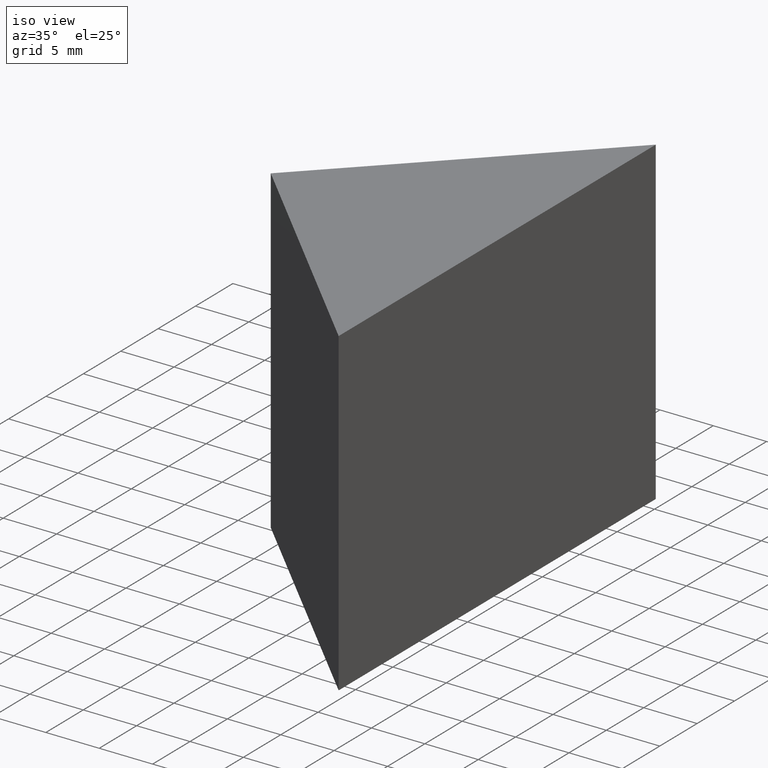
[diagram: clean part render]
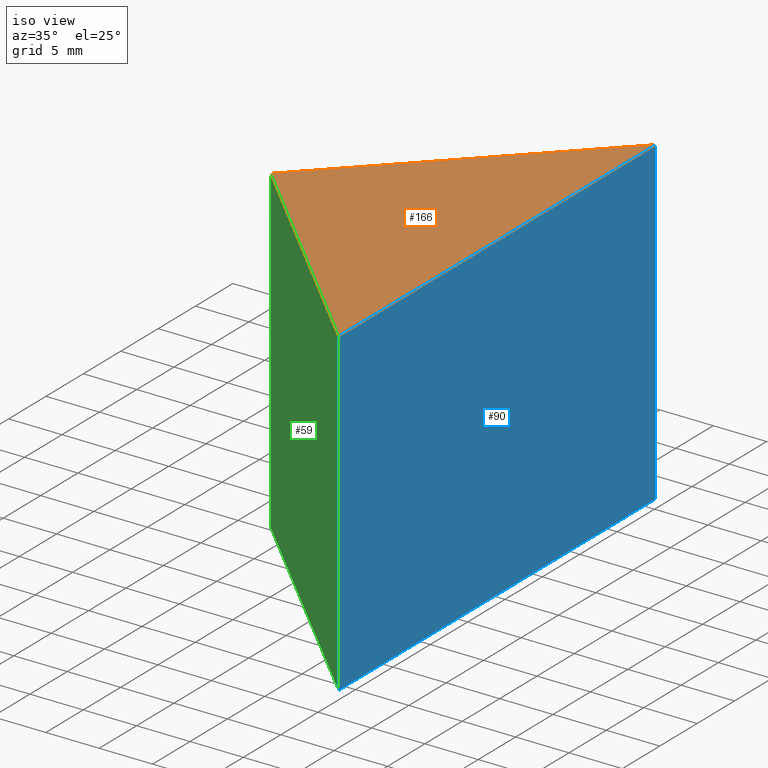
[diagram: same view with three faces highlighted in distinct colors, each labeled with its STEP entity id]
A machine part, iso view with three faces highlighted in distinct colors.
Their STEP definitions:

[orange] entity #166 — the highlighted planar face has unit normal (0, -0, 1).
#25 = ORIENTED_EDGE ( 'NONE', *, *, #42, .T. ) ;
#27 = ORIENTED_EDGE ( 'NONE', *, *, #106, .T. ) ;
#31 = VERTEX_POINT ( 'NONE', #155 ) ;
#32 = CARTESIAN_POINT ( 'NONE',  ( 0.0000000000000000000, 0.0000000000000000000, 30.00000000000000000 ) ) ;
#38 = CARTESIAN_POINT ( 'NONE',  ( 295.0610192926383200, 90.09166594508805300, 30.00000000000000000 ) ) ;
#40 = DIRECTION ( 'NONE',  ( 0.0000000000000000000, -0.0000000000000000000, 1.000000000000000000 ) ) ;
#42 = EDGE_CURVE ( 'NONE', #60, #68, #98, .T. ) ;
#47 = VECTOR ( 'NONE', #139, 1000.000000000000000 ) ;
#53 = CARTESIAN_POINT ( 'NONE',  ( 273.8478158570418900, 68.87846250949164100, 30.00000000000000000 ) ) ;
#55 = VECTOR ( 'NONE', #88, 1000.000000000000000 ) ;
#60 = VERTEX_POINT ( 'NONE', #38 ) ;
#61 = LINE ( 'NONE', #144, #169 ) ;
#64 = ORIENTED_EDGE ( 'NONE', *, *, #154, .T. ) ;
#68 = VERTEX_POINT ( 'NONE', #147 ) ;
#77 = EDGE_LOOP ( 'NONE', ( #64, #25, #27 ) ) ;
#79 = AXIS2_PLACEMENT_3D ( 'NONE', #32, #40, #164 ) ;
#88 = DIRECTION ( 'NONE',  ( 0.7071067811865481300, -0.7071067811865470200, 0.0000000000000000000 ) ) ;
#98 = LINE ( 'NONE', #118, #47 ) ;
#99 = PLANE ( 'NONE',  #79 ) ;
#106 = EDGE_CURVE ( 'NONE', #68, #31, #122, .T. ) ;
#112 = DIRECTION ( 'NONE',  ( 0.0000000000000000000, 1.000000000000000000, 0.0000000000000000000 ) ) ;
#118 = CARTESIAN_POINT ( 'NONE',  ( 295.0610192926383200, 90.09166594508805300, 30.00000000000000000 ) ) ;
#122 = LINE ( 'NONE', #53, #55 ) ;
#139 = DIRECTION ( 'NONE',  ( -0.7071067811865484600, -0.7071067811865465700, 0.0000000000000000000 ) ) ;
#144 = CARTESIAN_POINT ( 'NONE',  ( 295.0610192926383200, 47.66525907389522100, 30.00000000000000000 ) ) ;
#145 = FACE_OUTER_BOUND ( 'NONE', #77, .T. ) ;
#147 = CARTESIAN_POINT ( 'NONE',  ( 273.8478158570418900, 68.87846250949164100, 30.00000000000000000 ) ) ;
#154 = EDGE_CURVE ( 'NONE', #31, #60, #61, .T. ) ;
#155 = CARTESIAN_POINT ( 'NONE',  ( 295.0610192926383200, 47.66525907389522100, 30.00000000000000000 ) ) ;
#164 = DIRECTION ( 'NONE',  ( 1.000000000000000000, 0.0000000000000000000, -0.0000000000000000000 ) ) ;
#166 = ADVANCED_FACE ( 'NONE', ( #145 ), #99, .T. ) ;
#169 = VECTOR ( 'NONE', #112, 1000.000000000000000 ) ;

[blue] entity #90 — the highlighted planar face has unit normal (-1, 0, 0).
#1 = ORIENTED_EDGE ( 'NONE', *, *, #154, .F. ) ;
#6 = VERTEX_POINT ( 'NONE', #30 ) ;
#11 = DIRECTION ( 'NONE',  ( -0.0000000000000000000, -0.0000000000000000000, -1.000000000000000000 ) ) ;
#19 = LINE ( 'NONE', #95, #116 ) ;
#22 = CARTESIAN_POINT ( 'NONE',  ( 295.0610192926383200, 47.66525907389522100, 0.0000000000000000000 ) ) ;
#23 = ORIENTED_EDGE ( 'NONE', *, *, #63, .T. ) ;
#30 = CARTESIAN_POINT ( 'NONE',  ( 295.0610192926383200, 90.09166594508805300, 0.0000000000000000000 ) ) ;
#31 = VERTEX_POINT ( 'NONE', #155 ) ;
#38 = CARTESIAN_POINT ( 'NONE',  ( 295.0610192926383200, 90.09166594508805300, 30.00000000000000000 ) ) ;
#45 = FACE_OUTER_BOUND ( 'NONE', #168, .T. ) ;
#48 = LINE ( 'NONE', #67, #82 ) ;
#58 = CARTESIAN_POINT ( 'NONE',  ( 295.0610192926383200, 47.66525907389522100, 30.00000000000000000 ) ) ;
#60 = VERTEX_POINT ( 'NONE', #38 ) ;
#61 = LINE ( 'NONE', #144, #169 ) ;
#62 = ORIENTED_EDGE ( 'NONE', *, *, #100, .T. ) ;
#63 = EDGE_CURVE ( 'NONE', #137, #6, #48, .T. ) ;
#67 = CARTESIAN_POINT ( 'NONE',  ( 295.0610192926383200, 47.66525907389522100, 0.0000000000000000000 ) ) ;
#69 = DIRECTION ( 'NONE',  ( 0.0000000000000000000, 0.0000000000000000000, 1.000000000000000000 ) ) ;
#72 = DIRECTION ( 'NONE',  ( -0.0000000000000000000, -0.0000000000000000000, -1.000000000000000000 ) ) ;
#82 = VECTOR ( 'NONE', #129, 1000.000000000000000 ) ;
#90 = ADVANCED_FACE ( 'NONE', ( #45 ), #158, .F. ) ;
#95 = CARTESIAN_POINT ( 'NONE',  ( 295.0610192926383200, 47.66525907389522100, 30.00000000000000000 ) ) ;
#97 = CARTESIAN_POINT ( 'NONE',  ( 295.0610192926383200, 90.09166594508805300, 30.00000000000000000 ) ) ;
#100 = EDGE_CURVE ( 'NONE', #31, #137, #19, .T. ) ;
#109 = DIRECTION ( 'NONE',  ( -1.000000000000000000, 0.0000000000000000000, 0.0000000000000000000 ) ) ;
#110 = VECTOR ( 'NONE', #11, 1000.000000000000000 ) ;
#112 = DIRECTION ( 'NONE',  ( 0.0000000000000000000, 1.000000000000000000, 0.0000000000000000000 ) ) ;
#115 = EDGE_CURVE ( 'NONE', #60, #6, #161, .T. ) ;
#116 = VECTOR ( 'NONE', #72, 1000.000000000000000 ) ;
#129 = DIRECTION ( 'NONE',  ( 0.0000000000000000000, 1.000000000000000000, 0.0000000000000000000 ) ) ;
#133 = ORIENTED_EDGE ( 'NONE', *, *, #115, .F. ) ;
#137 = VERTEX_POINT ( 'NONE', #22 ) ;
#144 = CARTESIAN_POINT ( 'NONE',  ( 295.0610192926383200, 47.66525907389522100, 30.00000000000000000 ) ) ;
#154 = EDGE_CURVE ( 'NONE', #31, #60, #61, .T. ) ;
#155 = CARTESIAN_POINT ( 'NONE',  ( 295.0610192926383200, 47.66525907389522100, 30.00000000000000000 ) ) ;
#158 = PLANE ( 'NONE',  #167 ) ;
#161 = LINE ( 'NONE', #97, #110 ) ;
#167 = AXIS2_PLACEMENT_3D ( 'NONE', #58, #109, #69 ) ;
#168 = EDGE_LOOP ( 'NONE', ( #23, #133, #1, #62 ) ) ;
#169 = VECTOR ( 'NONE', #112, 1000.000000000000000 ) ;

[green] entity #59 — the highlighted planar face has unit normal (0.7071, 0.7071, -0).
#7 = DIRECTION ( 'NONE',  ( 0.7071067811865481300, -0.7071067811865470200, 0.0000000000000000000 ) ) ;
#15 = VECTOR ( 'NONE', #140, 1000.000000000000000 ) ;
#16 = FACE_OUTER_BOUND ( 'NONE', #33, .T. ) ;
#19 = LINE ( 'NONE', #95, #116 ) ;
#22 = CARTESIAN_POINT ( 'NONE',  ( 295.0610192926383200, 47.66525907389522100, 0.0000000000000000000 ) ) ;
#24 = AXIS2_PLACEMENT_3D ( 'NONE', #51, #141, #83 ) ;
#31 = VERTEX_POINT ( 'NONE', #155 ) ;
#33 = EDGE_LOOP ( 'NONE', ( #36, #165, #152, #160 ) ) ;
#36 = ORIENTED_EDGE ( 'NONE', *, *, #91, .T. ) ;
#46 = EDGE_CURVE ( 'NONE', #68, #124, #123, .T. ) ;
#51 = CARTESIAN_POINT ( 'NONE',  ( 273.8478158570418900, 68.87846250949164100, 30.00000000000000000 ) ) ;
#53 = CARTESIAN_POINT ( 'NONE',  ( 273.8478158570418900, 68.87846250949164100, 30.00000000000000000 ) ) ;
#55 = VECTOR ( 'NONE', #88, 1000.000000000000000 ) ;
#59 = ADVANCED_FACE ( 'NONE', ( #16 ), #157, .F. ) ;
#66 = CARTESIAN_POINT ( 'NONE',  ( 273.8478158570418900, 68.87846250949164100, 30.00000000000000000 ) ) ;
#68 = VERTEX_POINT ( 'NONE', #147 ) ;
#72 = DIRECTION ( 'NONE',  ( -0.0000000000000000000, -0.0000000000000000000, -1.000000000000000000 ) ) ;
#83 = DIRECTION ( 'NONE',  ( -0.7071067811865481300, 0.7071067811865470200, 0.0000000000000000000 ) ) ;
#88 = DIRECTION ( 'NONE',  ( 0.7071067811865481300, -0.7071067811865470200, 0.0000000000000000000 ) ) ;
#91 = EDGE_CURVE ( 'NONE', #124, #137, #150, .T. ) ;
#95 = CARTESIAN_POINT ( 'NONE',  ( 295.0610192926383200, 47.66525907389522100, 30.00000000000000000 ) ) ;
#100 = EDGE_CURVE ( 'NONE', #31, #137, #19, .T. ) ;
#106 = EDGE_CURVE ( 'NONE', #68, #31, #122, .T. ) ;
#111 = CARTESIAN_POINT ( 'NONE',  ( 273.8478158570418900, 68.87846250949164100, 0.0000000000000000000 ) ) ;
#116 = VECTOR ( 'NONE', #72, 1000.000000000000000 ) ;
#117 = VECTOR ( 'NONE', #7, 1000.000000000000000 ) ;
#121 = CARTESIAN_POINT ( 'NONE',  ( 273.8478158570418900, 68.87846250949164100, 0.0000000000000000000 ) ) ;
#122 = LINE ( 'NONE', #53, #55 ) ;
#123 = LINE ( 'NONE', #66, #15 ) ;
#124 = VERTEX_POINT ( 'NONE', #121 ) ;
#137 = VERTEX_POINT ( 'NONE', #22 ) ;
#140 = DIRECTION ( 'NONE',  ( -0.0000000000000000000, -0.0000000000000000000, -1.000000000000000000 ) ) ;
#141 = DIRECTION ( 'NONE',  ( 0.7071067811865470200, 0.7071067811865481300, -0.0000000000000000000 ) ) ;
#147 = CARTESIAN_POINT ( 'NONE',  ( 273.8478158570418900, 68.87846250949164100, 30.00000000000000000 ) ) ;
#150 = LINE ( 'NONE', #111, #117 ) ;
#152 = ORIENTED_EDGE ( 'NONE', *, *, #106, .F. ) ;
#155 = CARTESIAN_POINT ( 'NONE',  ( 295.0610192926383200, 47.66525907389522100, 30.00000000000000000 ) ) ;
#157 = PLANE ( 'NONE',  #24 ) ;
#160 = ORIENTED_EDGE ( 'NONE', *, *, #46, .T. ) ;
#165 = ORIENTED_EDGE ( 'NONE', *, *, #100, .F. ) ;